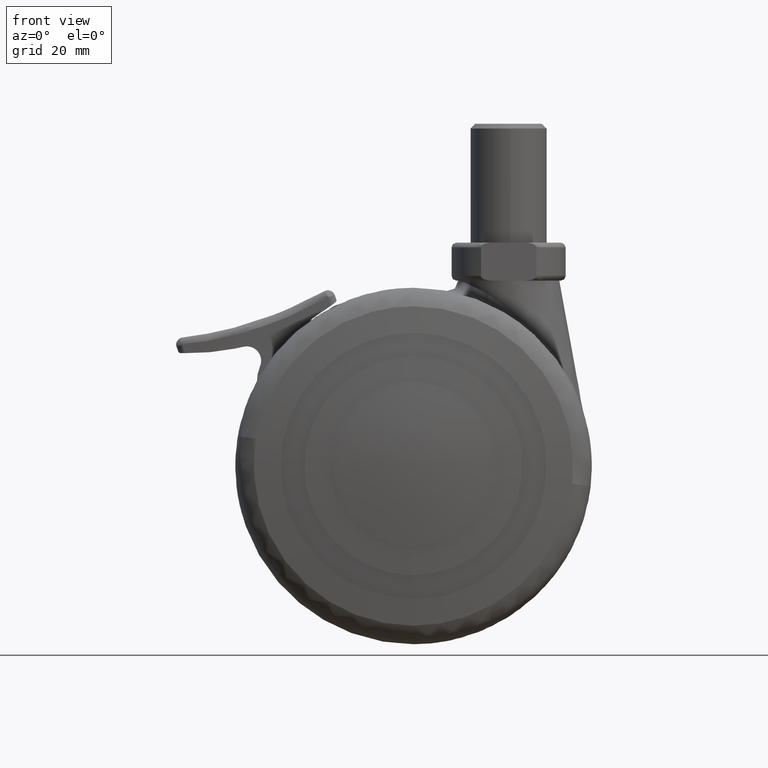
[diagram: clean part render]
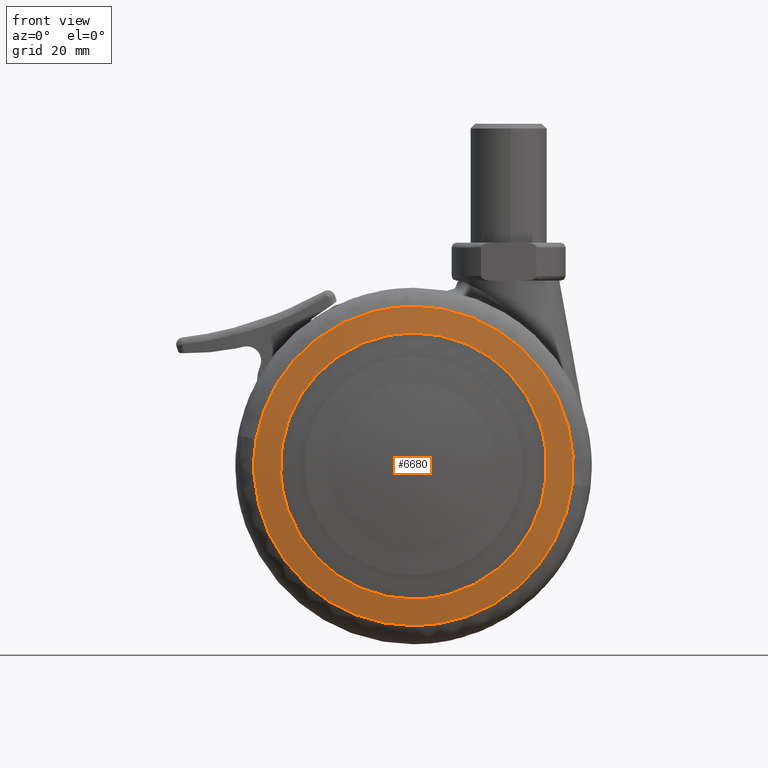
[diagram: same view with one face highlighted and labeled with its STEP entity id]
A machine part, front view. The second image highlights one B-rep face of the part: STEP entity #6680.
In plain terms, the highlighted face is a freeform B-spline surface patch.
Its self-contained STEP definition (entity closure, byte-faithful):
#5242=CARTESIAN_POINT('',(27.804270473939159,-29.554418667087731,3.304927141562036));
#5243=VERTEX_POINT('',#5242);
#5244=CARTESIAN_POINT('',(0.0,-29.554418667083901,-28.0));
#5245=VERTEX_POINT('',#5244);
#5246=CARTESIAN_POINT('',(27.804270473939159,-29.554418667087734,3.304927141562036));
#5247=CARTESIAN_POINT('',(28.000000000000004,-29.554418667083901,1.658259469711772));
#5248=CARTESIAN_POINT('',(28.0,-29.554418667083901,0.0));
#5249=CARTESIAN_POINT('',(28.000000000000004,-29.554418667083905,-28.000000000000004));
#5250=CARTESIAN_POINT('',(0.0,-29.554418667083901,-28.0));
#5258=(BOUNDED_CURVE()B_SPLINE_CURVE(2,(#5246,#5247,#5248,#5249,#5250),.UNSPECIFIED.,.F.,.U.)B_SPLINE_CURVE_WITH_KNOTS((3,2,3),(0.229562664550147,0.250000000000000,0.500000000000000),.UNSPECIFIED.)CURVE()GEOMETRIC_REPRESENTATION_ITEM()RATIONAL_B_SPLINE_CURVE((0.956027128623671,0.976056172144489,1.0,0.707106781186547,1.0))REPRESENTATION_ITEM(''));
#5259=EDGE_CURVE('',#5243,#5245,#5258,.T.);
#5300=CARTESIAN_POINT('',(-27.947775765747021,-29.554418667080729,-1.709336054434630));
#5301=VERTEX_POINT('',#5300);
#5307=CARTESIAN_POINT('',(0.0,-29.554418667083901,-28.0));
#5308=CARTESIAN_POINT('',(-26.339791640155504,-29.554418667083912,-28.0));
#5309=CARTESIAN_POINT('',(-27.947775765747014,-29.554418667080725,-1.709336054434631));
#5317=(BOUNDED_CURVE()B_SPLINE_CURVE(2,(#5307,#5308,#5309),.UNSPECIFIED.,.F.,.U.)B_SPLINE_CURVE_WITH_KNOTS((3,3),(0.500000000000000,0.739333104566090),.UNSPECIFIED.)CURVE()GEOMETRIC_REPRESENTATION_ITEM()RATIONAL_B_SPLINE_CURVE((1.0,0.719603826540085,0.976072346701076))REPRESENTATION_ITEM(''));
#5318=EDGE_CURVE('',#5245,#5301,#5317,.T.);
#5341=CARTESIAN_POINT('',(0.0,-29.554418667083901,28.0));
#5342=VERTEX_POINT('',#5341);
#5343=CARTESIAN_POINT('',(0.0,-29.554418667083901,28.0));
#5344=CARTESIAN_POINT('',(24.868915035331238,-29.554418667083919,28.0));
#5345=CARTESIAN_POINT('',(27.804270473939159,-29.554418667087734,3.304927141562036));
#5353=(BOUNDED_CURVE()B_SPLINE_CURVE(2,(#5343,#5344,#5345),.UNSPECIFIED.,.F.,.U.)B_SPLINE_CURVE_WITH_KNOTS((3,3),(0.0,0.229562664550147),.UNSPECIFIED.)CURVE()GEOMETRIC_REPRESENTATION_ITEM()RATIONAL_B_SPLINE_CURVE((1.0,0.731050609042058,0.956027128623671))REPRESENTATION_ITEM(''));
#5354=EDGE_CURVE('',#5342,#5243,#5353,.T.);
#5356=CARTESIAN_POINT('',(-27.947775765747014,-29.554418667080725,-1.709336054434631));
#5357=CARTESIAN_POINT('',(-28.000000000000004,-29.554418667083905,-0.855465813771990));
#5358=CARTESIAN_POINT('',(-28.0,-29.554418667083901,0.0));
#5359=CARTESIAN_POINT('',(-28.000000000000004,-29.554418667083905,28.000000000000004));
#5360=CARTESIAN_POINT('',(0.0,-29.554418667083901,28.0));
#5368=(BOUNDED_CURVE()B_SPLINE_CURVE(2,(#5356,#5357,#5358,#5359,#5360),.UNSPECIFIED.,.F.,.U.)B_SPLINE_CURVE_WITH_KNOTS((3,2,3),(0.739333104566090,0.750000000000000,1.0),.UNSPECIFIED.)CURVE()GEOMETRIC_REPRESENTATION_ITEM()RATIONAL_B_SPLINE_CURVE((0.976072346701076,0.987502954646462,1.0,0.707106781186547,1.0))REPRESENTATION_ITEM(''));
#5369=EDGE_CURVE('',#5301,#5342,#5368,.T.);
#6212=CARTESIAN_POINT('',(-33.118640977874179,-28.858494706443121,5.695980702990330));
#6213=VERTEX_POINT('',#6212);
#6227=CARTESIAN_POINT('',(0.0,-28.858494288646149,33.604889112993447));
#6228=VERTEX_POINT('',#6227);
#6229=CARTESIAN_POINT('',(-33.118640977874179,-28.858494706443118,5.695980702990330));
#6230=CARTESIAN_POINT('',(-28.318667274189643,-28.858494288646153,33.604889112993447));
#6231=CARTESIAN_POINT('',(0.0,-28.858494288646149,33.604889112993447));
#6239=(BOUNDED_CURVE()B_SPLINE_CURVE(2,(#6229,#6230,#6231),.UNSPECIFIED.,.F.,.U.)B_SPLINE_CURVE_WITH_KNOTS((3,3),(0.779150973645853,1.0),.UNSPECIFIED.)CURVE()GEOMETRIC_REPRESENTATION_ITEM()RATIONAL_B_SPLINE_CURVE((0.939659646668501,0.741259271197268,1.0))REPRESENTATION_ITEM(''));
#6240=EDGE_CURVE('',#6213,#6228,#6239,.T.);
#6242=CARTESIAN_POINT('',(33.390197973979276,-28.858494706162819,-3.792526306765592));
#6243=VERTEX_POINT('',#6242);
#6244=CARTESIAN_POINT('',(0.0,-28.858494288646149,33.604889112993447));
#6245=CARTESIAN_POINT('',(33.604889112993447,-28.858494288646156,33.604889112993447));
#6246=CARTESIAN_POINT('',(33.604889112993447,-28.858494288646149,0.0));
#6247=CARTESIAN_POINT('',(33.604889112993447,-28.858494288646146,-1.902339879364477));
#6248=CARTESIAN_POINT('',(33.390197973979276,-28.858494706162819,-3.792526306765592));
#6256=(BOUNDED_CURVE()B_SPLINE_CURVE(2,(#6244,#6245,#6246,#6247,#6248),.UNSPECIFIED.,.F.,.U.)B_SPLINE_CURVE_WITH_KNOTS((3,2,3),(0.0,0.250000000000000,0.269555763446314),.UNSPECIFIED.)CURVE()GEOMETRIC_REPRESENTATION_ITEM()RATIONAL_B_SPLINE_CURVE((1.0,0.707106781186548,1.0,0.977088997991418,0.957762333067619))REPRESENTATION_ITEM(''));
#6257=EDGE_CURVE('',#6228,#6243,#6256,.T.);
#6310=CARTESIAN_POINT('',(0.0,-28.858494288646149,-33.604889112993447));
#6311=VERTEX_POINT('',#6310);
#6312=CARTESIAN_POINT('',(33.390197973979276,-28.858494706162819,-3.792526306765592));
#6313=CARTESIAN_POINT('',(30.004049367654403,-28.858494288646142,-33.604889112993440));
#6314=CARTESIAN_POINT('',(0.0,-28.858494288646149,-33.604889112993447));
#6322=(BOUNDED_CURVE()B_SPLINE_CURVE(2,(#6312,#6313,#6314),.UNSPECIFIED.,.F.,.U.)B_SPLINE_CURVE_WITH_KNOTS((3,3),(0.269555763446314,0.500000000000000),.UNSPECIFIED.)CURVE()GEOMETRIC_REPRESENTATION_ITEM()RATIONAL_B_SPLINE_CURVE((0.957762333067619,0.730017783195130,1.0))REPRESENTATION_ITEM(''));
#6323=EDGE_CURVE('',#6243,#6311,#6322,.T.);
#6325=CARTESIAN_POINT('',(0.0,-28.858494288646149,-33.604889112993447));
#6326=CARTESIAN_POINT('',(-33.604889112993447,-28.858494288646156,-33.604889112993447));
#6327=CARTESIAN_POINT('',(-33.604889112993447,-28.858494288646149,0.0));
#6328=CARTESIAN_POINT('',(-33.604889112993455,-28.858494288646146,2.868745096114337));
#6329=CARTESIAN_POINT('',(-33.118640977874179,-28.858494706443121,5.695980702990330));
#6337=(BOUNDED_CURVE()B_SPLINE_CURVE(2,(#6325,#6326,#6327,#6328,#6329),.UNSPECIFIED.,.F.,.U.)B_SPLINE_CURVE_WITH_KNOTS((3,2,3),(0.500000000000000,0.750000000000000,0.779150973645854),.UNSPECIFIED.)CURVE()GEOMETRIC_REPRESENTATION_ITEM()RATIONAL_B_SPLINE_CURVE((1.0,0.707106781186548,1.0,0.965847509989279,0.939659646668500))REPRESENTATION_ITEM(''));
#6338=EDGE_CURVE('',#6311,#6213,#6337,.T.);
#6644=CARTESIAN_POINT('',(-36.725201892023698,-25.672866034730479,-36.725446870591945));
#6645=CARTESIAN_POINT('',(-18.463308407764210,-28.385140950209834,-36.926863137651914));
#6646=CARTESIAN_POINT('',(18.463420584633990,-28.385140950209834,-36.926863137651914));
#6647=CARTESIAN_POINT('',(36.725422587902344,-25.672833256654375,-36.725444436459000));
#6648=CARTESIAN_POINT('',(-36.926619517385326,-28.385177333704544,-18.463432919763445));
#6649=CARTESIAN_POINT('',(-18.565127962798751,-31.127366999999879,-18.565251803056459));
#6650=CARTESIAN_POINT('',(18.565240758289999,-31.127366999999879,-18.565251803056459));
#6651=CARTESIAN_POINT('',(36.926841410236896,-28.385144195102889,-18.463431689310458));
#6652=CARTESIAN_POINT('',(-36.926619517385326,-28.385177333704544,18.463435961052948));
#6653=CARTESIAN_POINT('',(-18.565127962798751,-31.127366999999879,18.565254861117531));
#6654=CARTESIAN_POINT('',(18.565240758289999,-31.127366999999879,18.565254861117531));
#6655=CARTESIAN_POINT('',(36.926841410236896,-28.385144195102889,18.463434730599747));
#6656=CARTESIAN_POINT('',(-36.725201826030776,-25.672865146062556,36.725452853999961));
#6657=CARTESIAN_POINT('',(-18.463308374404814,-28.385140051767568,36.926869153511248));
#6658=CARTESIAN_POINT('',(18.463420551274389,-28.385140051767568,36.926869153511248));
#6659=CARTESIAN_POINT('',(36.725422521909046,-25.672832367986569,36.725450419866604));
#6667=(BOUNDED_SURFACE()B_SPLINE_SURFACE(2,2,((#6644,#6648,#6652,#6656),(#6645,#6649,#6653,#6657),(#6646,#6650,#6654,#6658),(#6647,#6651,#6655,#6659)),.UNSPECIFIED.,.F.,.F.,.U.)B_SPLINE_SURFACE_WITH_KNOTS((3,1,3),(3,1,3),(77.771751591873169,113.912011031043800,150.052490046310400),(77.771510515213009,113.912011031043800,150.052517499923710),.UNSPECIFIED.)GEOMETRIC_REPRESENTATION_ITEM()RATIONAL_B_SPLINE_SURFACE(((1.011029320812576,1.005514623620401,1.005514623620401,1.011029322629333),(1.005514697192174,1.0,1.0,1.005514699008932),(1.005514697192174,1.0,1.0,1.005514699008932),(1.011029387822787,1.005514690630613,1.005514690630613,1.011029389639544)))REPRESENTATION_ITEM('')SURFACE());
#6668=ORIENTED_EDGE('',*,*,#6240,.F.);
#6669=ORIENTED_EDGE('',*,*,#6338,.F.);
#6670=ORIENTED_EDGE('',*,*,#6323,.F.);
#6671=ORIENTED_EDGE('',*,*,#6257,.F.);
#6672=EDGE_LOOP('',(#6668,#6669,#6670,#6671));
#6673=FACE_OUTER_BOUND('',#6672,.T.);
#6674=ORIENTED_EDGE('',*,*,#5318,.T.);
#6675=ORIENTED_EDGE('',*,*,#5369,.T.);
#6676=ORIENTED_EDGE('',*,*,#5354,.T.);
#6677=ORIENTED_EDGE('',*,*,#5259,.T.);
#6678=EDGE_LOOP('',(#6674,#6675,#6676,#6677));
#6679=FACE_BOUND('',#6678,.T.);
#6680=ADVANCED_FACE('',(#6673,#6679),#6667,.T.);